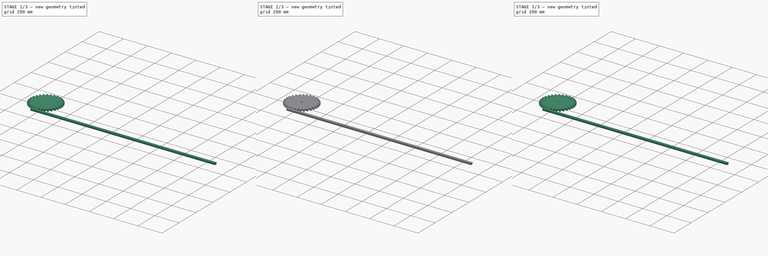
[diagram: build sequence overview — one tinted view per stage of 3, left to right]
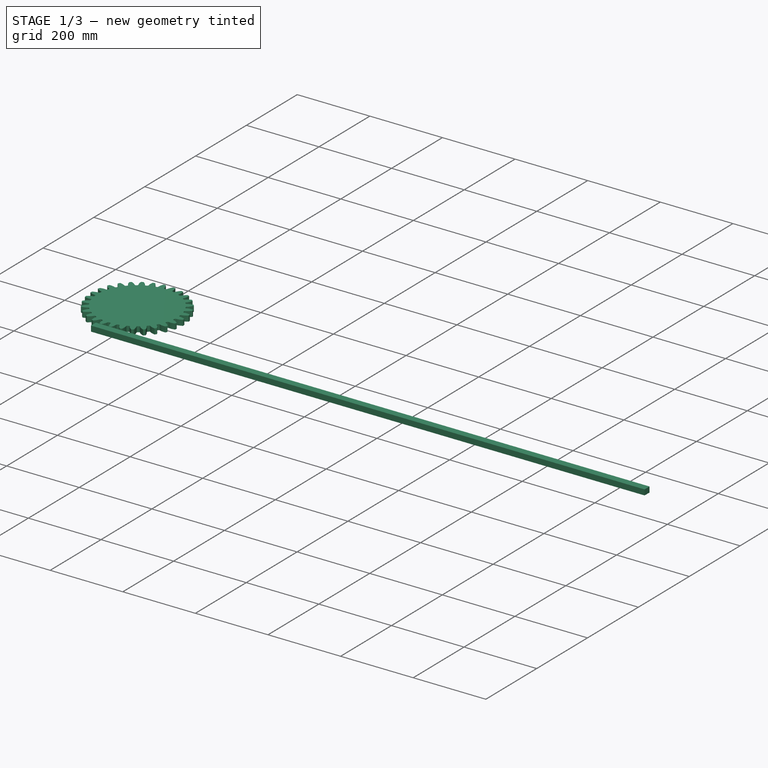
[diagram: stage 1 of 3 — iso view after this stage's code; geometry added in this stage tinted green]
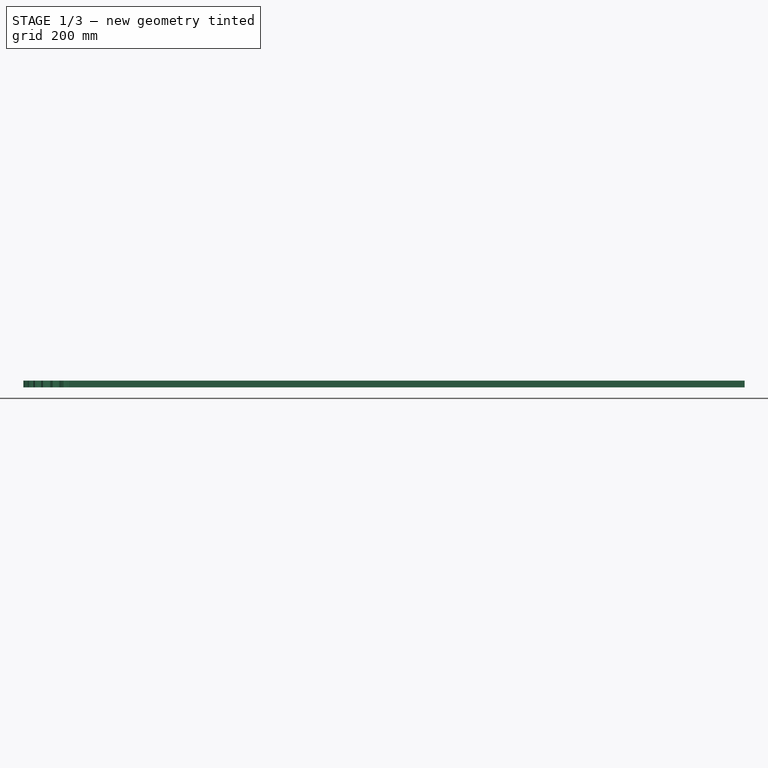
[diagram: stage 1 of 3 — front view after this stage's code; geometry added in this stage tinted green]
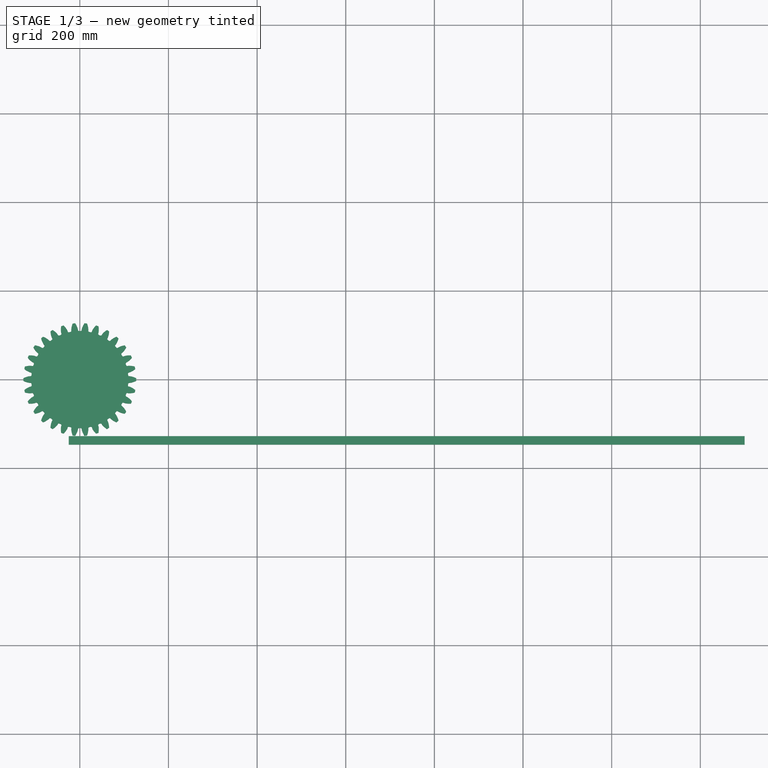
[diagram: stage 1 of 3 — top view after this stage's code; geometry added in this stage tinted green]
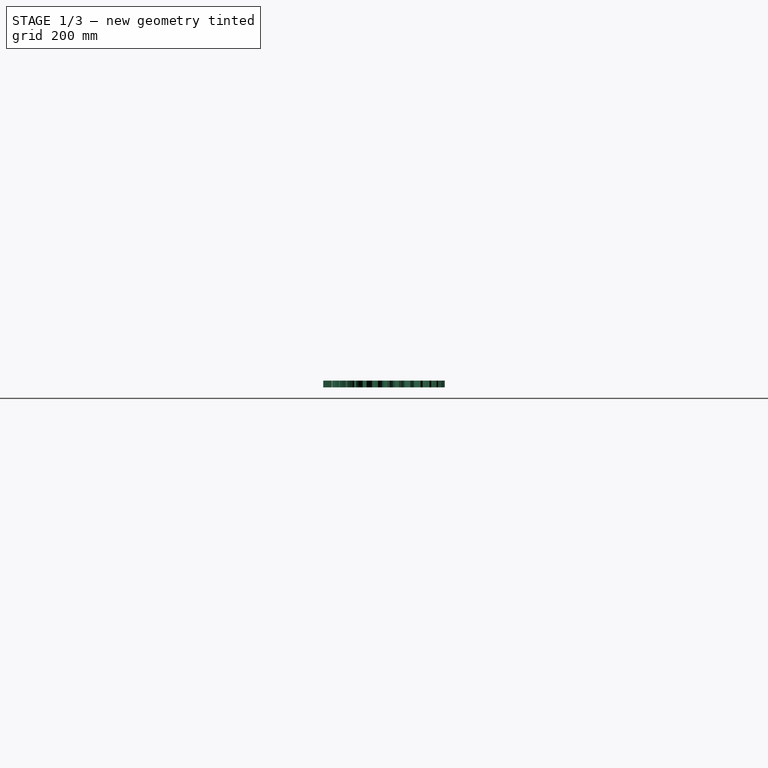
[diagram: stage 1 of 3 — right view after this stage's code; geometry added in this stage tinted green]
FCSTD DOCUMENT  (FreeCAD 0.20R29177 +426 (Git))
Label: Piñon Cremallera
License: All rights reserved
LicenseURL: http://en.wikipedia.org/wiki/All_rights_reserved
objects: Sketcher::SketchObject×5, PartDesign::Pad×3, PartDesign::Pocket×3, PartDesign::Body×3, Part::Part2DObjectPython×1, Part::FeaturePython×1, PartDesign::FeatureBase×1
note: 22 computed .brp shape members not serialized (recipe doc carries the construction recipe); baked Part::Feature solids carry a one-line shape summary decoded from their .brp

FEATURE [Part::Part2DObjectPython] InvoluteGear  # Draft 2D object (typed FeaturePython)
  ExternalGear = true
  HighPrecision = true
  Modules = 7.96
  NumberOfTeeth = 30
  PressureAngle = 20
FEATURE [PartDesign::Pad] Pad
  Direction = (0,0,1)
  Length = 15
  Length2 = 10
  Profile = -> InvoluteGear
  ReferenceAxis = -> InvoluteGear [N_Axis]
  Type = 0
FEATURE [PartDesign::Body] Body  label="Motriz"
  Group = -> [InvoluteGear,Pad,Sketch,Pocket,Sketch001,Pocket001,Sketch002,Pocket002]
  Origin = -> Origin
  Tip = -> Pocket002
FEATURE [Sketcher::SketchObject] Sketch003
  FullyConstrained = false
  MapMode = 5
  Support = -> [XY_Plane002]
  sketch-geometry (12):
    g0: LineSegment StartX=-94.6858 StartY=-119.4 StartZ=0 EndX=83.1975 EndY=-119.4 EndZ=0
    g1: LineSegment StartX=-94.8133 StartY=-109.4 StartZ=0 EndX=83.7746 EndY=-109.4 EndZ=0
    g2: LineSegment StartX=-95.5178 StartY=-127.4 StartZ=0 EndX=82.3656 EndY=-127.4 EndZ=0
    g3: LineSegment StartX=-2.4603 StartY=-109.4 StartZ=0 EndX=-9.01176 EndY=-127.4 EndZ=0
    g4: LineSegment StartX=-9.01176 StartY=-127.4 StartZ=0 EndX=-9.01176 EndY=-129.4 EndZ=0
    g5: LineSegment StartX=-9.01176 StartY=-129.4 StartZ=0 EndX=9.01176 EndY=-129.4 EndZ=0
    g6: LineSegment StartX=9.01176 StartY=-129.4 StartZ=0 EndX=9.01176 EndY=-127.4 EndZ=0
    g7: LineSegment StartX=9.01176 StartY=-127.4 StartZ=0 EndX=2.4603 EndY=-109.4 EndZ=0
    g8: GeomPoint X=6.1 Y=-119.4 Z=0
    g9: GeomPoint X=-6.1 Y=-119.4 Z=0
    g10: LineSegment StartX=-6.1 StartY=-106.569 StartZ=0 EndX=-6.1 EndY=-132.231 EndZ=0
    g11: LineSegment StartX=-2.4603 StartY=-109.4 StartZ=0 EndX=2.4603 EndY=-109.4 EndZ=0
  constraints (29):
    c: Horizontal(g0)
    c: DistanceY(g0,g-1) = 119.4
    c: Horizontal(g1)
    c: DistanceY(g1,g-1) = 109.4
    c: Horizontal(g2)
    c: DistanceY(g2,g-1) = 127.4
    c: PointOnObject(g3,g1)
    c: PointOnObject(g3,g2)
    c: Coincident(g3,g4)
    c: Vertical(g4)
    c: Coincident(g4,g5)
    c: Horizontal(g5)
    c: Coincident(g5,g6)
    c: PointOnObject(g6,g2)
    c: Coincident(g6,g7)
    c: PointOnObject(g7,g1)
    c: PointOnObject(g8,g0)
    c: PointOnObject(g8,g7)
    c: PointOnObject(g9,g3)
    c: Symmetric(g8,g9,g-2)
    c: DistanceX(g9,g8) = 12.2
    c: Vertical(g10)
    c: Symmetric(g10,g10,g9)
    c: Angle(g10,g3) = 2.79253
    c: Equal(g7,g3)
    c: Vertical(g6)
    c: DistanceY(g6,g6) = 2
    c: Coincident(g11,g3)
    c: Coincident(g11,g7)
FEATURE [Sketcher::SketchObject] Sketch004
  FullyConstrained = false
  MapMode = 5
  Support = -> [XY_Plane003]
  sketch-geometry (4):
    g0: LineSegment StartX=-25 StartY=-127.7 StartZ=0 EndX=1500 EndY=-127.7 EndZ=0
    g1: LineSegment StartX=1500 StartY=-127.7 StartZ=0 EndX=1500 EndY=-146.936 EndZ=0
    g2: LineSegment StartX=1500 StartY=-146.936 StartZ=0 EndX=-25 EndY=-146.936 EndZ=0
    g3: LineSegment StartX=-25 StartY=-146.936 StartZ=0 EndX=-25 EndY=-127.7 EndZ=0
  constraints (11):
    c: Coincident(g0,g1)
    c: Coincident(g1,g2)
    c: Coincident(g2,g3)
    c: Coincident(g3,g0)
    c: Horizontal(g0)
    c: Horizontal(g2)
    c: Vertical(g1)
    c: Vertical(g3)
    c: DistanceY(g0,g-1) = 127.7
    c: DistanceX(g0,g-1) = 25
    c: DistanceX(g-1,g0) = 1500
FEATURE [PartDesign::Pad] Pad002
  Direction = (0,0,1)
  Length = 15
  Length2 = 10
  Profile = -> Sketch004
  ReferenceAxis = -> Sketch004 [N_Axis]
  Type = 0
FEATURE [PartDesign::Body] Body003
  Group = -> [Sketch004,Pad002]
  Origin = -> Origin003
  Tip = -> Pad002
FEATURE [PartDesign::Body] Body002  label="Diente"
  BaseFeature = -> Array
  Group = -> [BaseFeature,Sketch003,Pad001]
  Origin = -> Origin002
  Tip = -> Pad001
FEATURE [PartDesign::Pad] Pad001
  BaseFeature = -> BaseFeature
  Direction = (0,0,1)
  Length = 15
  Length2 = 10
  Profile = -> Sketch003
  ReferenceAxis = -> Sketch003 [N_Axis]
  Type = 0
FEATURE [Part::FeaturePython] Array  # Draft array (typed FeaturePython)
  AlwaysSyncPlacement = false
  Angle = 360
  ArrayType = 0
  Axis = (0,0,1)
  Base = -> Pad001
  Center = (0,0,0)
  Count = 60
  ExpandArray = false
  Fuse = false
  IntervalAxis = (0,0,0)
  IntervalX = (25,0,0)
  IntervalY = (0,100,0)
  IntervalZ = (0,0,100)
  NumberCircles = 3
  NumberPolar = 5
  NumberX = 60
  NumberY = 1
  NumberZ = 1
  PlacementList = 60 placements: arithmetic series from (0,0,0) step (25,0,0) to (1475,0,0)
  RadialDistance = 50
  ScaleList = (60) [(1,1,1),(1,1,1),(1,1,1),(1,1,1),(1,1,1),(1,1,1),(1,1,1),(1,1,1),(1,1,1),(1,1,1),(1,1,1),(1,1,1),(1,1,1),(1,1,1),(1,1,1),(1,1,1),(1,1,1),(1,1,1),+42 more]
  Symmetry = 1
  TangentialDistance = 25
FEATURE [PartDesign::FeatureBase] BaseFeature
  BaseFeature = -> Array
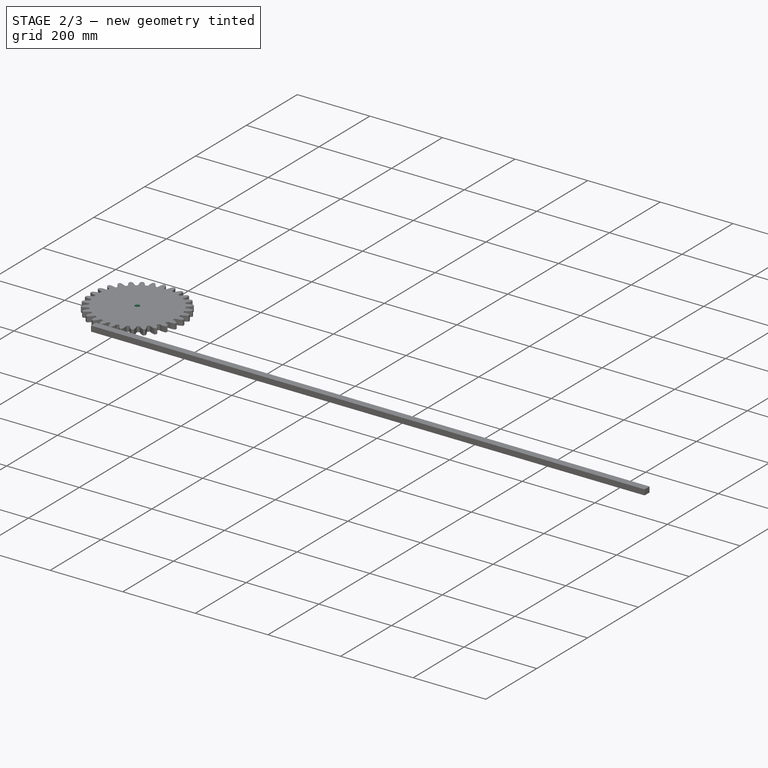
[diagram: stage 2 of 3 — iso view after this stage's code; geometry added in this stage tinted green]
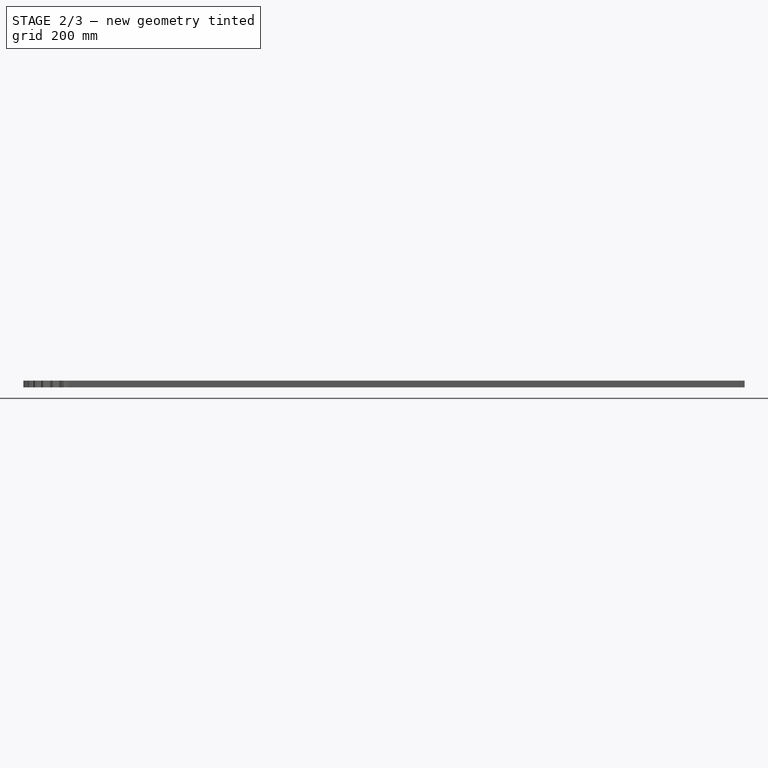
[diagram: stage 2 of 3 — front view after this stage's code; geometry added in this stage tinted green]
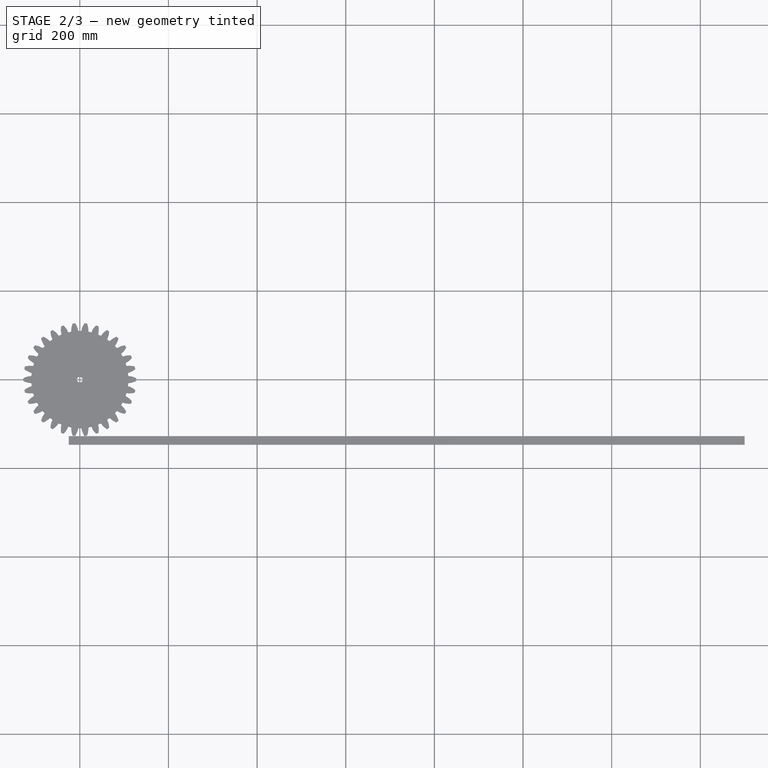
[diagram: stage 2 of 3 — top view after this stage's code; geometry added in this stage tinted green]
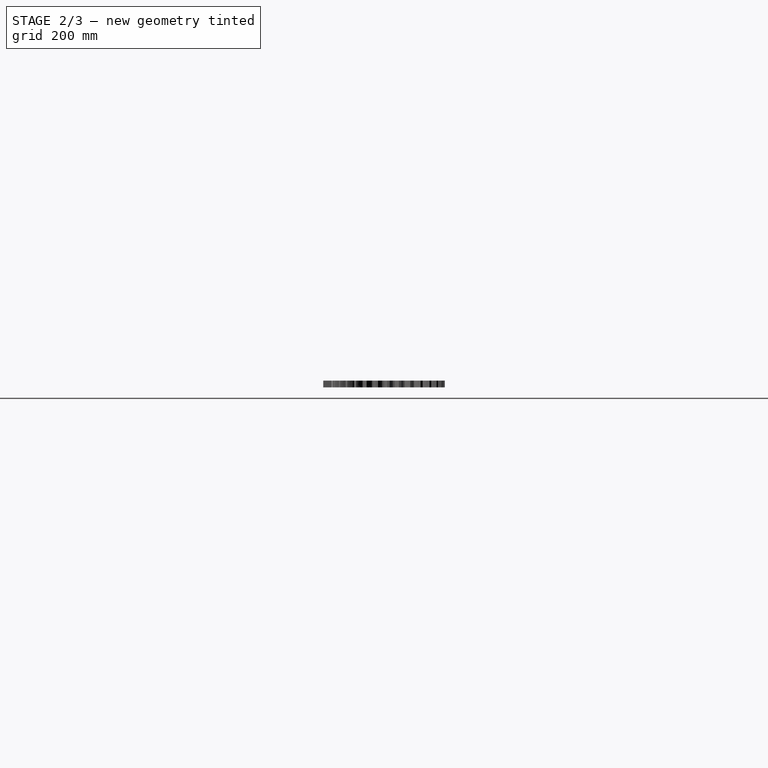
[diagram: stage 2 of 3 — right view after this stage's code; geometry added in this stage tinted green]
FEATURE [Sketcher::SketchObject] Sketch
  FullyConstrained = true
  MapMode = 5
  Placement = pos=(0,0,15) rot=(0,0,1;0rad)
  Support = -> [Pad]
  sketch-geometry (1):
    g0: Circle CenterX=0 CenterY=0 CenterZ=0 NormalX=0 NormalY=0 NormalZ=1 AngleXU=0 Radius=6.35
  constraints (2):
    c: Coincident(g0,g-1)
    c: Diameter(g0) = 12.7
FEATURE [PartDesign::Pocket] Pocket
  BaseFeature = -> Pad
  Direction = (0,0,-1)
  Length = 5
  Length2 = 5
  Profile = -> Sketch
  ReferenceAxis = -> Sketch [N_Axis]
  Type = 1
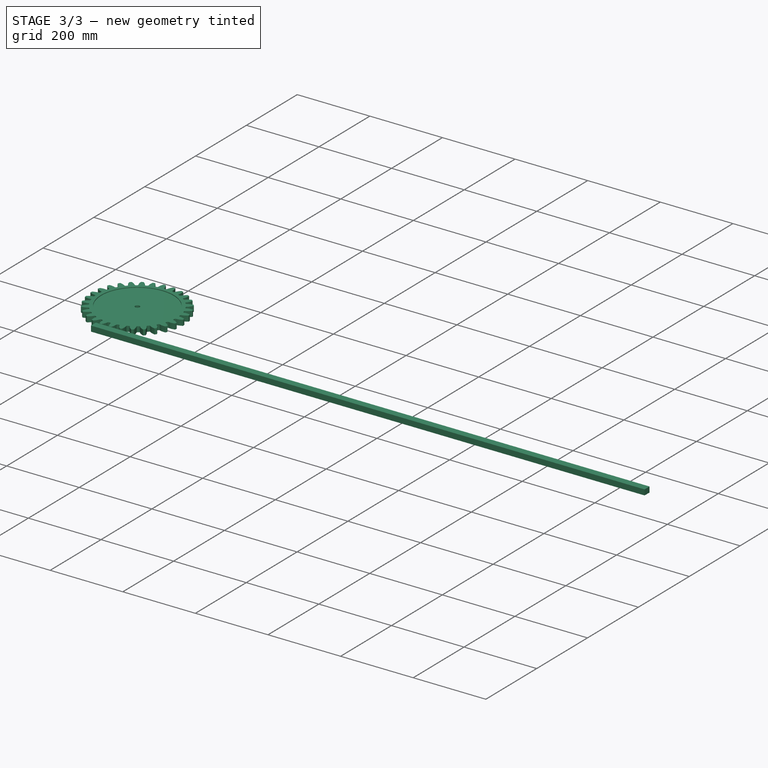
[diagram: stage 3 of 3 — iso view after this stage's code; geometry added in this stage tinted green]
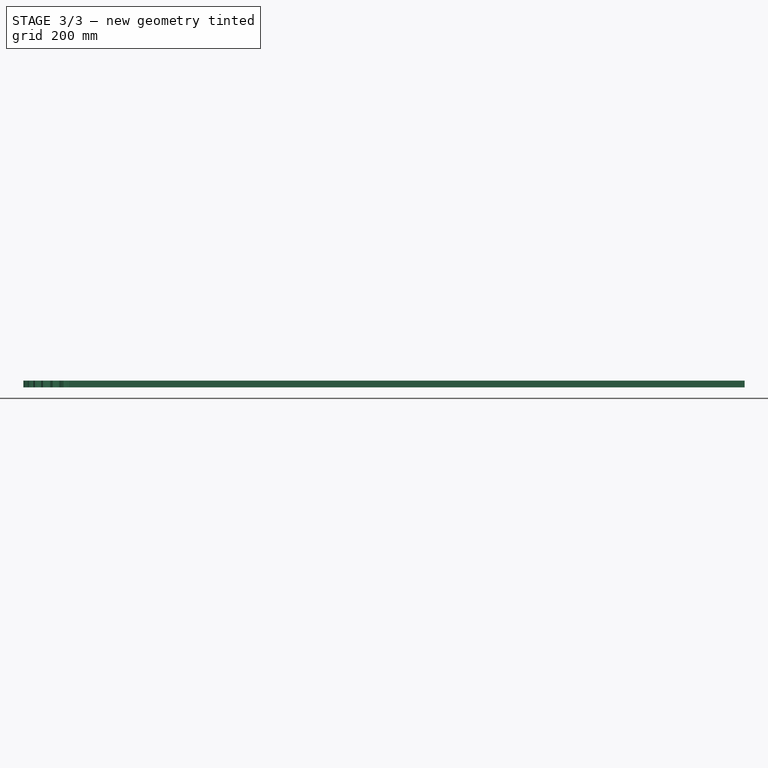
[diagram: stage 3 of 3 — front view after this stage's code; geometry added in this stage tinted green]
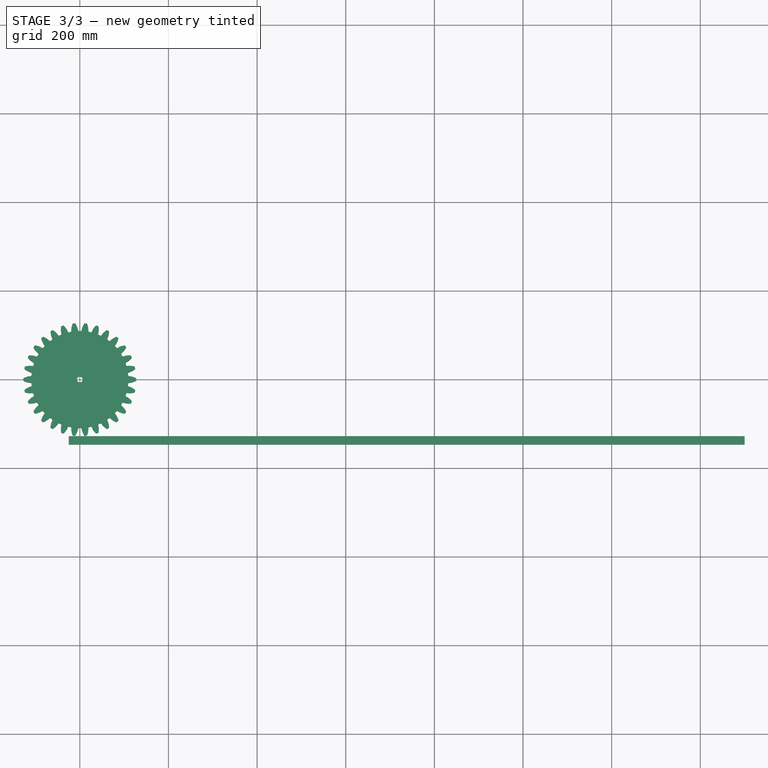
[diagram: stage 3 of 3 — top view after this stage's code; geometry added in this stage tinted green]
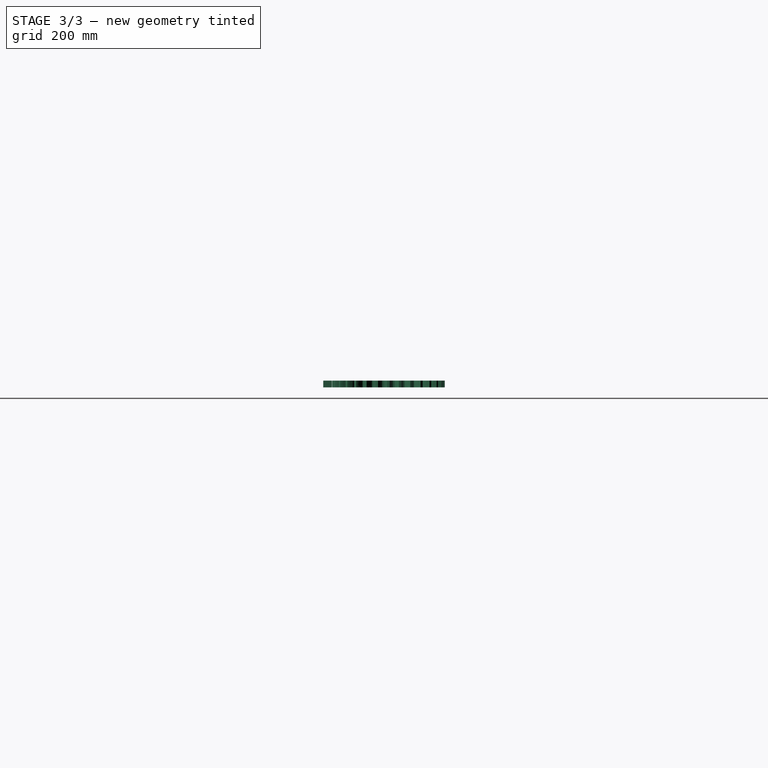
[diagram: stage 3 of 3 — right view after this stage's code; geometry added in this stage tinted green]
FEATURE [Sketcher::SketchObject] Sketch001
  FullyConstrained = true
  MapMode = 5
  Placement = pos=(0,0,15) rot=(0,0,1;0rad)
  Support = -> [Pocket]
  sketch-geometry (1):
    g0: Circle CenterX=0 CenterY=0 CenterZ=0 NormalX=0 NormalY=0 NormalZ=1 AngleXU=0 Radius=100
  constraints (2):
    c: Coincident(g0,g-1)
    c: Diameter(g0) = 200
FEATURE [PartDesign::Pocket] Pocket001
  BaseFeature = -> Pocket
  Direction = (0,0,-1)
  Length = 2
  Length2 = 5
  Profile = -> Sketch001
  ReferenceAxis = -> Sketch001 [N_Axis]
  Type = 0
FEATURE [Sketcher::SketchObject] Sketch002
  FullyConstrained = true
  MapMode = 5
  Placement = pos=(0,0,0) rot=(1,0,0;3.14159rad)
  Support = -> [Pocket001]
  sketch-geometry (1):
    g0: Circle CenterX=0 CenterY=0 CenterZ=0 NormalX=0 NormalY=0 NormalZ=1 AngleXU=0 Radius=100
  constraints (2):
    c: Coincident(g0,g-1)
    c: Diameter(g0) = 200
FEATURE [PartDesign::Pocket] Pocket002
  BaseFeature = -> Pocket001
  Direction = (0,0,1)
  Length = 2
  Length2 = 5
  Profile = -> Sketch002
  ReferenceAxis = -> Sketch002 [N_Axis]
  Type = 0
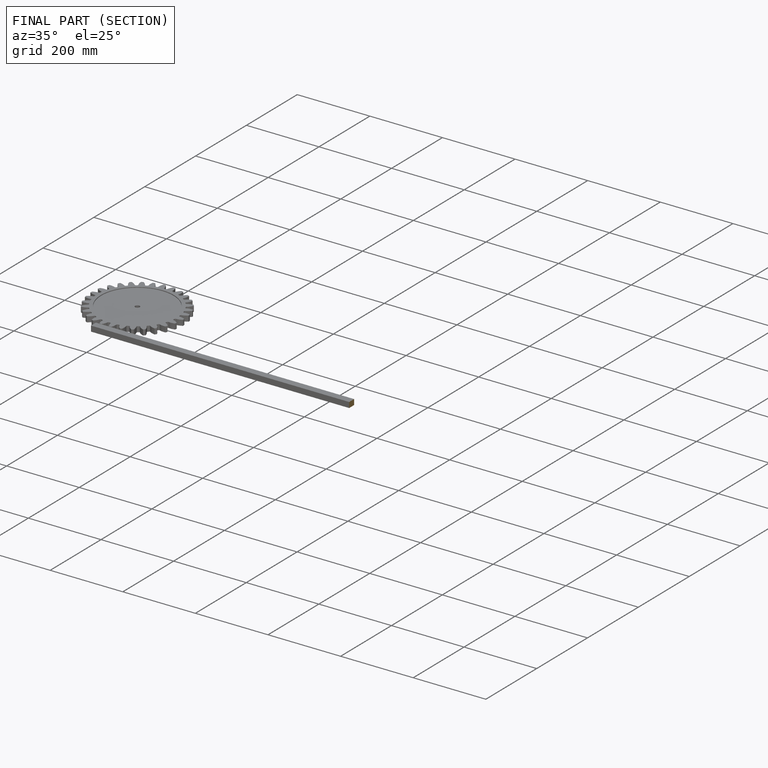
[diagram: finished part — half-section view (interior)]
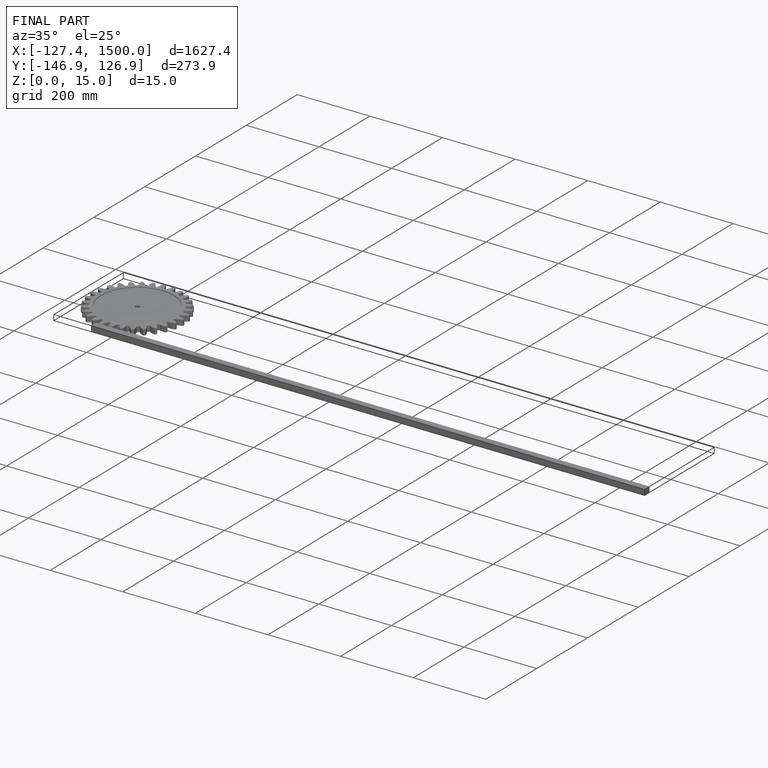
[diagram: finished part — iso view with bounding-box wireframe]
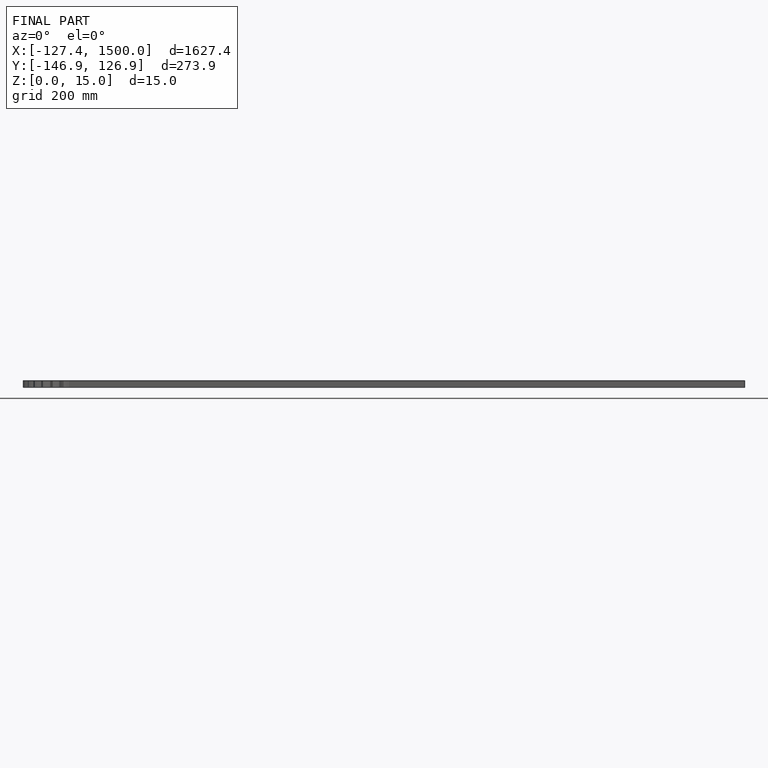
[diagram: finished part — front view with bounding-box wireframe]
